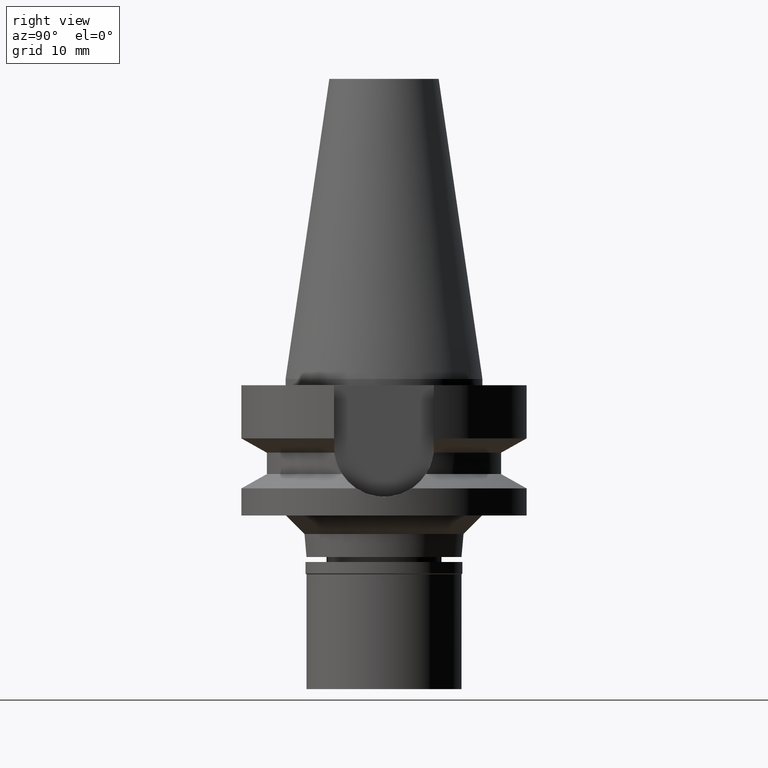
[diagram: clean part render]
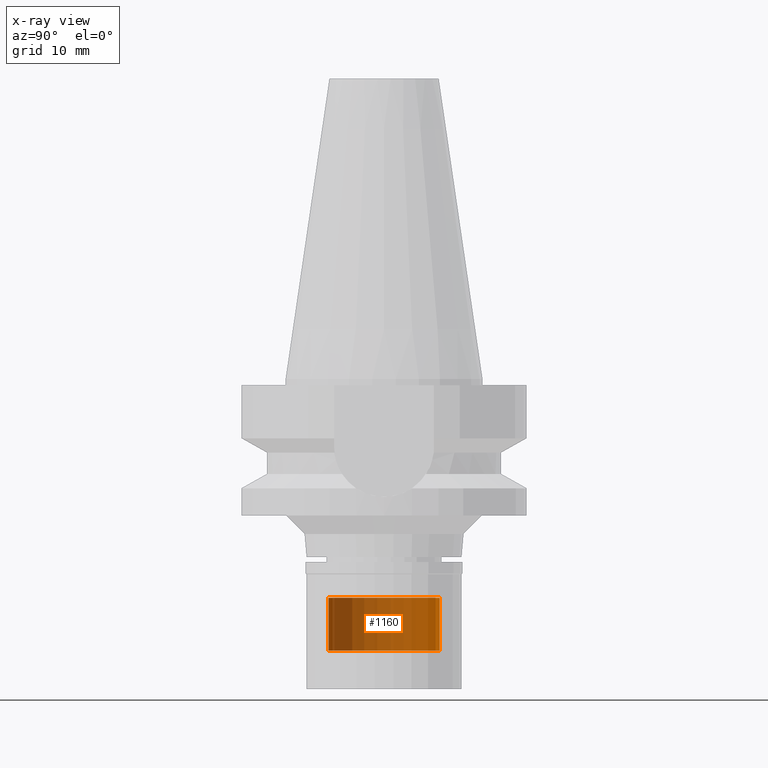
[diagram: x-ray — body ghosted, one internal face saturated and labeled with its STEP entity id]
A machine part, right view, then the same camera in x-ray: the body is ghosted and one INTERNAL B-rep face — a face not visible from any outside direction — is saturated and labeled: STEP entity #1160.
In plain terms, the highlighted cylindrical surface (partial cylindrical patch) has radius 9 mm, axis along (0, 0, -1).
Its self-contained STEP definition (entity closure, byte-faithful):
#103 = CARTESIAN_POINT ( 'NONE',  ( 0.0000000000000000000, -9.000000000000000000, -43.79999999999999716 ) ) ;
#259 = ORIENTED_EDGE ( 'NONE', *, *, #2532, .T. ) ;
#413 = FACE_OUTER_BOUND ( 'NONE', #818, .T. ) ;
#427 = ORIENTED_EDGE ( 'NONE', *, *, #2787, .T. ) ;
#483 = ORIENTED_EDGE ( 'NONE', *, *, #2969, .F. ) ;
#558 = DIRECTION ( 'NONE',  ( 0.0000000000000000000, 0.0000000000000000000, 1.000000000000000000 ) ) ;
#623 = AXIS2_PLACEMENT_3D ( 'NONE', #2071, #830, #2984 ) ;
#729 = AXIS2_PLACEMENT_3D ( 'NONE', #2498, #558, #821 ) ;
#803 = DIRECTION ( 'NONE',  ( 0.0000000000000000000, 0.0000000000000000000, -1.000000000000000000 ) ) ;
#818 = EDGE_LOOP ( 'NONE', ( #3054, #483, #427, #259 ) ) ;
#821 = DIRECTION ( 'NONE',  ( 0.0000000000000000000, 1.000000000000000000, 0.0000000000000000000 ) ) ;
#830 = DIRECTION ( 'NONE',  ( 0.0000000000000000000, 0.0000000000000000000, -1.000000000000000000 ) ) ;
#932 = CARTESIAN_POINT ( 'NONE',  ( 0.0000000000000000000, -9.000000000000000000, -35.29999999999999716 ) ) ;
#943 = VERTEX_POINT ( 'NONE', #103 ) ;
#990 = VECTOR ( 'NONE', #803, 1000.000000000000000 ) ;
#1110 = CYLINDRICAL_SURFACE ( 'NONE', #623, 9.000000000000000000 ) ;
#1122 = CARTESIAN_POINT ( 'NONE',  ( 0.0000000000000000000, 1.873832067375000042E-14, -35.29999999999999716 ) ) ;
#1160 = ADVANCED_FACE ( 'NONE', ( #413 ), #1110, .T. ) ;
#1270 = CARTESIAN_POINT ( 'NONE',  ( 0.0000000000000000000, 9.000000000000000000, -35.29999999999999716 ) ) ;
#1301 = EDGE_CURVE ( 'NONE', #2681, #943, #2896, .T. ) ;
#1393 = CARTESIAN_POINT ( 'NONE',  ( 0.0000000000000000000, 9.000000000000000000, -35.29999999999999716 ) ) ;
#1589 = LINE ( 'NONE', #1270, #990 ) ;
#1621 = DIRECTION ( 'NONE',  ( 0.0000000000000000000, -1.000000000000000000, 0.0000000000000000000 ) ) ;
#1677 = VERTEX_POINT ( 'NONE', #1393 ) ;
#1824 = DIRECTION ( 'NONE',  ( 0.0000000000000000000, 0.0000000000000000000, -1.000000000000000000 ) ) ;
#2035 = CARTESIAN_POINT ( 'NONE',  ( 0.0000000000000000000, -9.000000000000000000, -35.29999999999999716 ) ) ;
#2071 = CARTESIAN_POINT ( 'NONE',  ( 0.0000000000000000000, 1.873832067375000042E-14, 53.01000000000000512 ) ) ;
#2083 = DIRECTION ( 'NONE',  ( 0.0000000000000000000, 0.0000000000000000000, -1.000000000000000000 ) ) ;
#2098 = VERTEX_POINT ( 'NONE', #932 ) ;
#2197 = CARTESIAN_POINT ( 'NONE',  ( 0.0000000000000000000, 9.000000000000000000, -43.79999999999999716 ) ) ;
#2284 = AXIS2_PLACEMENT_3D ( 'NONE', #1122, #2083, #1621 ) ;
#2431 = CIRCLE ( 'NONE', #2284, 9.000000000000000000 ) ;
#2498 = CARTESIAN_POINT ( 'NONE',  ( 0.0000000000000000000, 1.873832067375000042E-14, -43.79999999999999716 ) ) ;
#2532 = EDGE_CURVE ( 'NONE', #1677, #2681, #1589, .T. ) ;
#2547 = LINE ( 'NONE', #2035, #2621 ) ;
#2621 = VECTOR ( 'NONE', #1824, 1000.000000000000000 ) ;
#2681 = VERTEX_POINT ( 'NONE', #2197 ) ;
#2787 = EDGE_CURVE ( 'NONE', #2098, #1677, #2431, .T. ) ;
#2896 = CIRCLE ( 'NONE', #729, 9.000000000000000000 ) ;
#2969 = EDGE_CURVE ( 'NONE', #2098, #943, #2547, .T. ) ;
#2984 = DIRECTION ( 'NONE',  ( 0.0000000000000000000, -1.000000000000000000, 0.0000000000000000000 ) ) ;
#3054 = ORIENTED_EDGE ( 'NONE', *, *, #1301, .T. ) ;